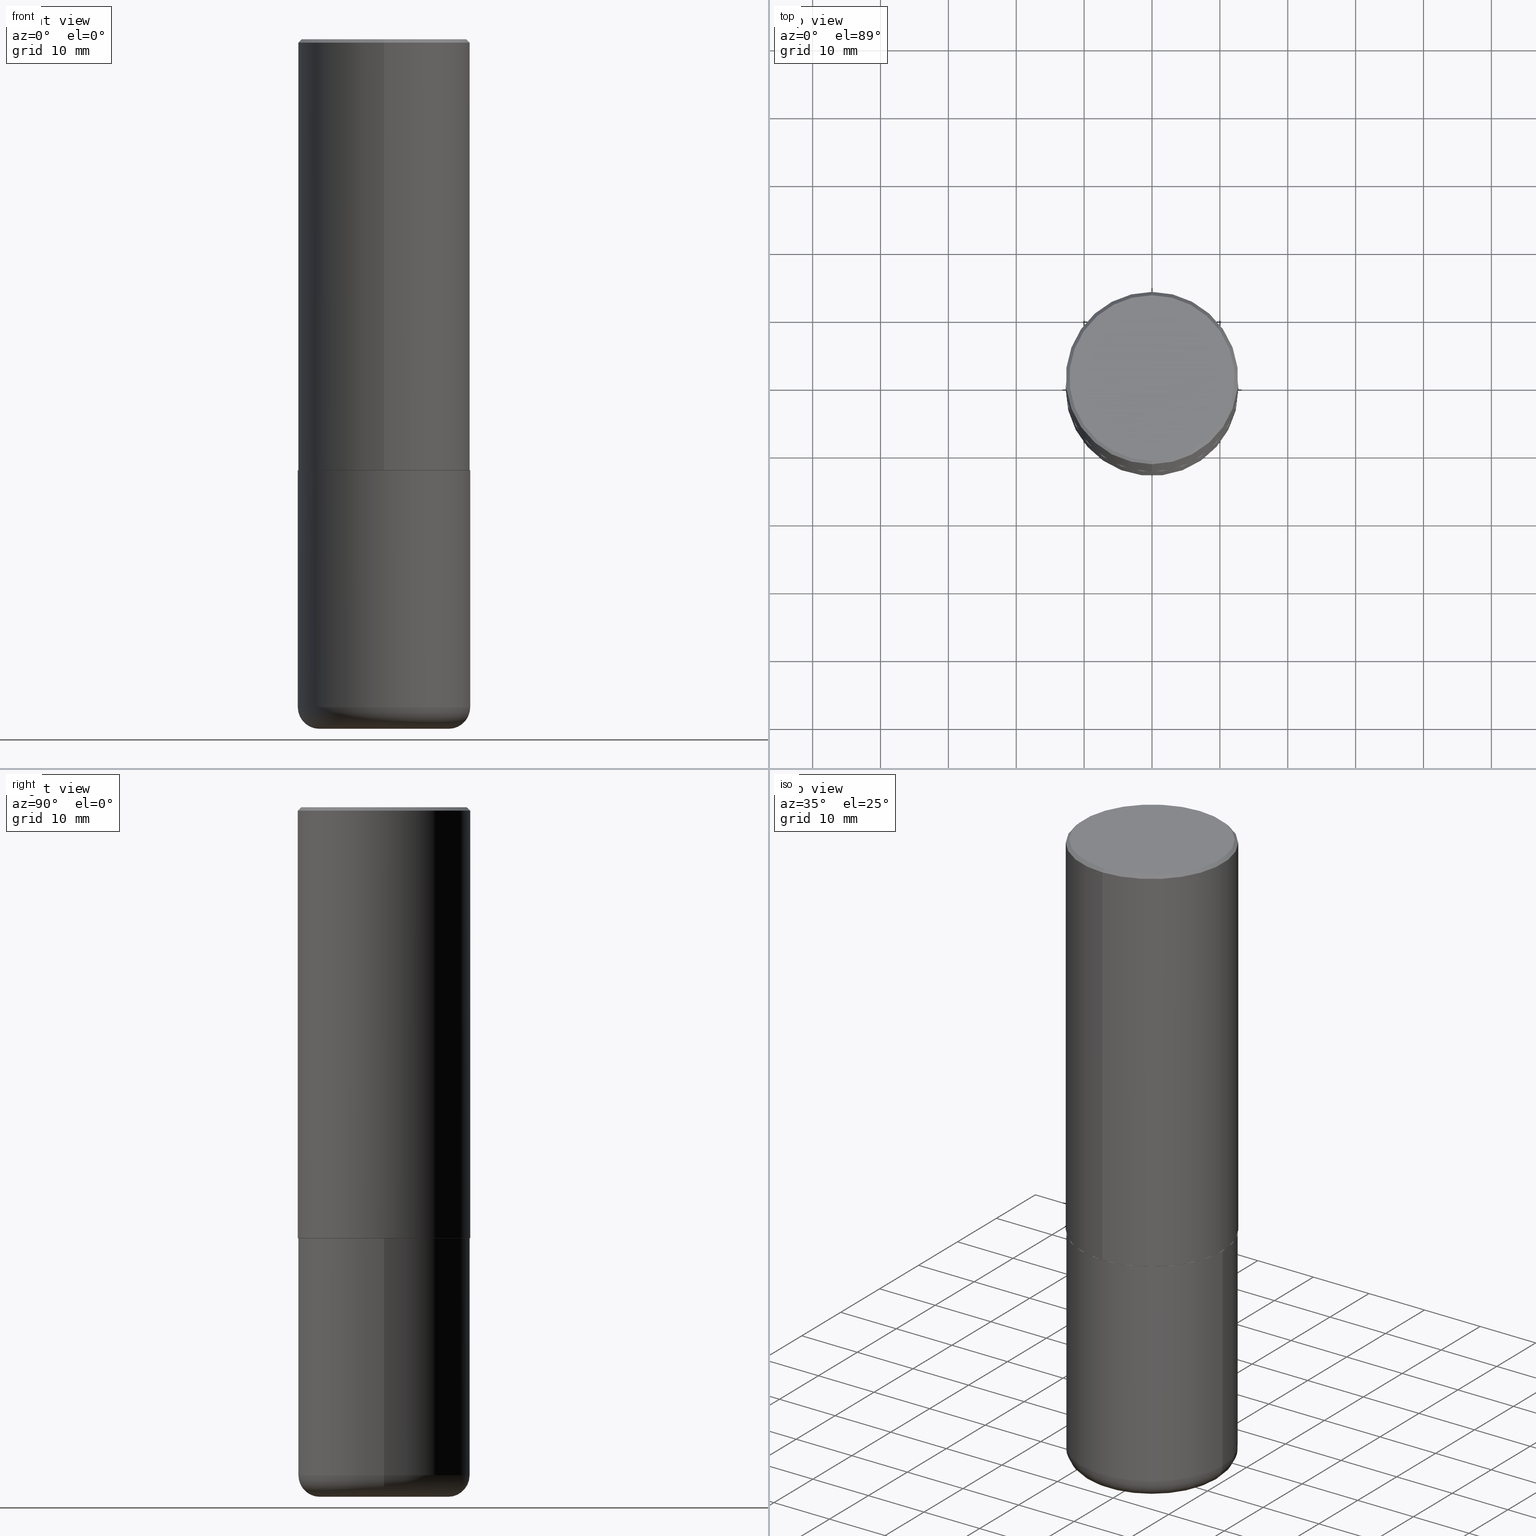
[diagram: canonical four-view strip — front | top / right | iso, engineering-drawing reading convention]
A machine part, canonical four-view strip (front | top / right | iso — engineering-drawing reading convention). The complete STEP part file that produces these views, byte-faithful:
ISO-10303-21;
HEADER;
FILE_DESCRIPTION (( 'STEP AP203' ),
    '1' );
FILE_NAME ('36719.STEP',
    '2024-03-01T17:34:02',
    ( '' ),
    ( '' ),
    'SwSTEP 2.0',
    'SolidWorks 2023',
    '' );
FILE_SCHEMA (( 'CONFIG_CONTROL_DESIGN' ));
ENDSEC;

DATA;
#1 = COORDINATED_UNIVERSAL_TIME_OFFSET ( 5, 0, .BEHIND. ) ;
#2 = CARTESIAN_POINT ( 'NONE',  ( -3.491481338843073796E-15, -0.5000000000000089928, -2.498999999999998778 ) ) ;
#3 = DIRECTION ( 'NONE',  ( 4.937700262164541731E-15, 0.7071067811865442421, -0.7071067811865507924 ) ) ;
#4 = CC_DESIGN_APPROVAL ( #348, ( #27 ) ) ;
#5 = EDGE_CURVE ( 'NONE', #345, #21, #34, .T. ) ;
#6 = DIRECTION ( 'NONE',  ( -2.444544534276841438E-29, 3.492804948822114088E-15, 1.000000000000000000 ) ) ;
#7 = ORIENTED_EDGE ( 'NONE', *, *, #5, .T. ) ;
#8 = MANIFOLD_SOLID_BREP ( 'Body-Move/Copy2[2]', #48 ) ;
#9 = APPROVAL_DATE_TIME ( #81, #348 ) ;
#10 = CIRCLE ( 'NONE', #190, 0.1249999999999999584 ) ;
#11 = AXIS2_PLACEMENT_3D ( 'NONE', #68, #198, #322 ) ;
#12 = SHAPE_DEFINITION_REPRESENTATION ( #80, #377 ) ;
#13 = ADVANCED_FACE ( 'NONE', ( #260 ), #281, .T. ) ;
#14 = CARTESIAN_POINT ( 'NONE',  ( -3.491481338843133750E-15, -0.5000000000000001110, 1.746402474411057438E-15 ) ) ;
#15 = VERTEX_POINT ( 'NONE', #231 ) ;
#16 = ORIENTED_EDGE ( 'NONE', *, *, #370, .T. ) ;
#17 = AXIS2_PLACEMENT_3D ( 'NONE', #88, #344, #54 ) ;
#18 = AXIS2_PLACEMENT_3D ( 'NONE', #126, #120, #125 ) ;
#19 = ORIENTED_EDGE ( 'NONE', *, *, #64, .T. ) ;
#20 = PERSON_AND_ORGANIZATION ( #141, #268 ) ;
#21 = VERTEX_POINT ( 'NONE', #67 ) ;
#22 = CC_DESIGN_PERSON_AND_ORGANIZATION_ASSIGNMENT ( #60, #97, ( #245 ) ) ;
#23 = DIRECTION ( 'NONE',  ( -6.982962677686265922E-15, -1.000000000000000000, 3.492804948822114088E-15 ) ) ;
#24 = APPROVAL_STATUS ( 'not_yet_approved' ) ;
#25 = ORIENTED_EDGE ( 'NONE', *, *, #373, .F. ) ;
#26 = EDGE_LOOP ( 'NONE', ( #248, #400, #46, #314 ) ) ;
#27 = SECURITY_CLASSIFICATION ( '', '', #366 ) ;
#28 = ADVANCED_FACE ( 'NONE', ( #172 ), #289, .T. ) ;
#29 = DIRECTION ( 'NONE',  ( -2.444544534276841438E-29, 3.492804948822114088E-15, 1.000000000000000000 ) ) ;
#30 = CC_DESIGN_PERSON_AND_ORGANIZATION_ASSIGNMENT ( #199, #364, ( #106 ) ) ;
#31 = PERSON_AND_ORGANIZATION_ROLE ( 'classification_officer' ) ;
#32 = ADVANCED_FACE ( 'NONE', ( #43 ), #157, .F. ) ;
#33 = FACE_OUTER_BOUND ( 'NONE', #406, .T. ) ;
#34 = CIRCLE ( 'NONE', #356, 0.4800000000000000933 ) ;
#35 = APPROVAL_PERSON_ORGANIZATION ( #20, #85, #259 ) ;
#36 = PERSON_AND_ORGANIZATION ( #141, #268 ) ;
#37 = DIRECTION ( 'NONE',  ( -2.445468806185136597E-29, 3.491481338843145583E-15, 1.000000000000000000 ) ) ;
#38 = CARTESIAN_POINT ( 'NONE',  ( -0.5000000000000000000, 3.552713678800500929E-15, -2.459467545127452891E-29 ) ) ;
#39 = DIRECTION ( 'NONE',  ( -2.444544534276841438E-29, 3.492804948822114088E-15, 1.000000000000000000 ) ) ;
#40 = DIRECTION ( 'NONE',  ( -6.982962677686265922E-15, -1.000000000000000000, 3.491643216902136408E-15 ) ) ;
#41 = DIRECTION ( 'NONE',  ( -2.444544534276841438E-29, 3.492804948822114088E-15, 1.000000000000000000 ) ) ;
#42 = AXIS2_PLACEMENT_3D ( 'NONE', #187, #306, #397 ) ;
#43 = FACE_OUTER_BOUND ( 'NONE', #272, .T. ) ;
#44 = DIRECTION ( 'NONE',  ( -6.982962677686265922E-15, -1.000000000000000000, 3.284787166730577015E-15 ) ) ;
#45 = CARTESIAN_POINT ( 'NONE',  ( 4.889089068553708695E-31, -6.985609897644266091E-17, -0.02000000000000010797 ) ) ;
#46 = ORIENTED_EDGE ( 'NONE', *, *, #186, .T. ) ;
#47 =( NAMED_UNIT ( * ) PLANE_ANGLE_UNIT ( ) SI_UNIT ( $, .RADIAN. ) );
#48 = CLOSED_SHELL ( 'NONE', ( #13, #359, #104, #52, #151, #398, #32, #290 ) ) ;
#49 = AXIS2_PLACEMENT_3D ( 'NONE', #301, #145, #305 ) ;
#50 = DIRECTION ( 'NONE',  ( -6.982962677686266711E-15, -1.000000000000000000, 3.278217592397114284E-15 ) ) ;
#51 = DIRECTION ( 'NONE',  ( -2.445468806185136597E-29, 3.491481338843145583E-15, 1.000000000000000000 ) ) ;
#52 = ADVANCED_FACE ( 'NONE', ( #84 ), #129, .T. ) ;
#53 = ORIENTED_EDGE ( 'NONE', *, *, #70, .T. ) ;
#54 = DIRECTION ( 'NONE',  ( 6.982962677686265922E-15, 1.000000000000000000, -3.491643216902136408E-15 ) ) ;
#55 = LINE ( 'NONE', #38, #384 ) ;
#56 = DIRECTION ( 'NONE',  ( 1.000000000000000000, -6.982962677686267499E-15, 4.883557194083114022E-29 ) ) ;
#57 = ORIENTED_EDGE ( 'NONE', *, *, #317, .T. ) ;
#58 = CARTESIAN_POINT ( 'NONE',  ( 6.111361335692103595E-29, -8.732012372055285615E-15, -2.500000000000000000 ) ) ;
#59 = EDGE_CURVE ( 'NONE', #308, #15, #335, .T. ) ;
#60 = PERSON_AND_ORGANIZATION ( #141, #268 ) ;
#61 = ORIENTED_EDGE ( 'NONE', *, *, #226, .T. ) ;
#62 = ORIENTED_EDGE ( 'NONE', *, *, #213, .F. ) ;
#63 = ORIENTED_EDGE ( 'NONE', *, *, #5, .F. ) ;
#64 = EDGE_CURVE ( 'NONE', #15, #308, #229, .T. ) ;
#65 = LOCAL_TIME ( 12, 34, 2.000000000000000000, #360 ) ;
#66 = CARTESIAN_POINT ( 'NONE',  ( 0.5000000000000000000, -1.702097152686032086E-14, -3.875000000000000000 ) ) ;
#67 = CARTESIAN_POINT ( 'NONE',  ( -3.361644018908050055E-15, -0.4800000000000000933, 1.544857821031407057E-15 ) ) ;
#68 = CARTESIAN_POINT ( 'NONE',  ( 3.219185358931801043E-45, -4.599624345227544074E-31, -1.316885544032078073E-16 ) ) ;
#69 = DIRECTION ( 'NONE',  ( -6.982962677686265922E-15, -1.000000000000000000, 3.284787166730577015E-15 ) ) ;
#70 = EDGE_CURVE ( 'NONE', #308, #354, #402, .T. ) ;
#71 = AXIS2_PLACEMENT_3D ( 'NONE', #203, #411, #200 ) ;
#72 = LOCAL_TIME ( 12, 34, 2.000000000000000000, #95 ) ;
#73 = VECTOR ( 'NONE', #369, 39.37007874015748143 ) ;
#74 = DIRECTION ( 'NONE',  ( -6.982962677686265922E-15, -1.000000000000000000, 3.491643216902136408E-15 ) ) ;
#75 = DIRECTION ( 'NONE',  ( -2.445468806185136597E-29, 3.491481338843145583E-15, 1.000000000000000000 ) ) ;
#76 = DATE_AND_TIME ( #388, #271 ) ;
#77 = CARTESIAN_POINT ( 'NONE',  ( 9.476191623967404313E-29, -1.352949018801718908E-14, -3.875000000000000000 ) ) ;
#78 = DIRECTION ( 'NONE',  ( 5.024295867789263036E-15, 0.7071067811867189912, 0.7071067811863760433 ) ) ;
#79 = CC_DESIGN_DATE_AND_TIME_ASSIGNMENT ( #76, #330, ( #27 ) ) ;
#80 = PRODUCT_DEFINITION_SHAPE ( 'NONE', 'NONE',  #249 ) ;
#81 = DATE_AND_TIME ( #214, #140 ) ;
#82 = DIRECTION ( 'NONE',  ( -2.445468806185136877E-29, 3.491481338843145188E-15, 1.000000000000000000 ) ) ;
#83 = DIRECTION ( 'NONE',  ( -4.851104656540957964E-15, -0.7071067811865491270, -0.7071067811865459074 ) ) ;
#84 = FACE_OUTER_BOUND ( 'NONE', #347, .T. ) ;
#85 = APPROVAL ( #24, 'UNSPECIFIED' ) ;
#86 = ORIENTED_EDGE ( 'NONE', *, *, #70, .F. ) ;
#87 = AXIS2_PLACEMENT_3D ( 'NONE', #235, #358, #362 ) ;
#88 = CARTESIAN_POINT ( 'NONE',  ( 4.889089068553708695E-31, -6.985609897644266091E-17, -0.02000000000000010797 ) ) ;
#89 = DIRECTION ( 'NONE',  ( -1.000000000000000000, 7.105427357600998703E-15, 0.000000000000000000 ) ) ;
#90 = FACE_OUTER_BOUND ( 'NONE', #155, .T. ) ;
#91 = DIRECTION ( 'NONE',  ( -2.444544534276840877E-29, 3.492804948822114482E-15, 1.000000000000000000 ) ) ;
#92 =( GEOMETRIC_REPRESENTATION_CONTEXT ( 3 ) GLOBAL_UNCERTAINTY_ASSIGNED_CONTEXT ( ( #94 ) ) GLOBAL_UNIT_ASSIGNED_CONTEXT ( ( #382, #47, #162 ) ) REPRESENTATION_CONTEXT ( 'NONE', 'WORKASPACE' ) );
#93 = ORIENTED_EDGE ( 'NONE', *, *, #304, .T. ) ;
#94 = UNCERTAINTY_MEASURE_WITH_UNIT (LENGTH_MEASURE( 1.000000000000000082E-05 ), #382, 'distance_accuracy_value', 'NONE');
#95 = COORDINATED_UNIVERSAL_TIME_OFFSET ( 5, 0, .BEHIND. ) ;
#96 = CARTESIAN_POINT ( 'NONE',  ( 6.111361335692103595E-29, -8.732012372055285615E-15, -2.500000000000000000 ) ) ;
#97 = PERSON_AND_ORGANIZATION_ROLE ( 'design_owner' ) ;
#98 = ORIENTED_EDGE ( 'NONE', *, *, #324, .T. ) ;
#99 = AXIS2_PLACEMENT_3D ( 'NONE', #418, #135, #327 ) ;
#100 = CC_DESIGN_APPROVAL ( #85, ( #249 ) ) ;
#101 = APPROVAL_DATE_TIME ( #284, #110 ) ;
#102 = CARTESIAN_POINT ( 'NONE',  ( 6.113672015462842613E-29, -8.728703347107864943E-15, -2.500000000000000000 ) ) ;
#103 = ORIENTED_EDGE ( 'NONE', *, *, #363, .T. ) ;
#104 = ADVANCED_FACE ( 'NONE', ( #115 ), #210, .T. ) ;
#105 = CARTESIAN_POINT ( 'NONE',  ( 6.111361335692103595E-29, -8.732012372055285615E-15, -2.500000000000000000 ) ) ;
#106 = PRODUCT_DEFINITION_FORMATION_WITH_SPECIFIED_SOURCE ( 'ANY', '', #245, .NOT_KNOWN. ) ;
#107 = EDGE_CURVE ( 'NONE', #251, #401, #55, .T. ) ;
#108 = CARTESIAN_POINT ( 'NONE',  ( 0.000000000000000000, 0.000000000000000000, 0.000000000000000000 ) ) ;
#109 = LINE ( 'NONE', #244, #368 ) ;
#110 = APPROVAL ( #291, 'UNSPECIFIED' ) ;
#111 = AXIS2_PLACEMENT_3D ( 'NONE', #96, #355, #261 ) ;
#112 = AXIS2_PLACEMENT_3D ( 'NONE', #393, #6, #74 ) ;
#113 = EDGE_CURVE ( 'NONE', #21, #354, #109, .T. ) ;
#114 = ORIENTED_EDGE ( 'NONE', *, *, #220, .F. ) ;
#115 = FACE_OUTER_BOUND ( 'NONE', #116, .T. ) ;
#116 = EDGE_LOOP ( 'NONE', ( #25, #150, #61, #237 ) ) ;
#117 = CC_DESIGN_SECURITY_CLASSIFICATION ( #27, ( #106 ) ) ;
#118 = DIRECTION ( 'NONE',  ( -2.444544534276841158E-29, 3.492804948822114482E-15, 1.000000000000000000 ) ) ;
#119 = ORIENTED_EDGE ( 'NONE', *, *, #363, .F. ) ;
#120 = DIRECTION ( 'NONE',  ( 0.000000000000000000, 0.000000000000000000, 1.000000000000000000 ) ) ;
#121 = ORIENTED_EDGE ( 'NONE', *, *, #107, .T. ) ;
#122 = EDGE_LOOP ( 'NONE', ( #275, #277, #103, #413 ) ) ;
#123 = VECTOR ( 'NONE', #3, 39.37007874015748143 ) ;
#124 = ORIENTED_EDGE ( 'NONE', *, *, #113, .F. ) ;
#125 = DIRECTION ( 'NONE',  ( 1.000000000000000000, 0.000000000000000000, 0.000000000000000000 ) ) ;
#126 = CARTESIAN_POINT ( 'NONE',  ( 0.000000000000000000, 0.000000000000000000, 0.000000000000000000 ) ) ;
#127 = DIRECTION ( 'NONE',  ( -6.982962677686266711E-15, -1.000000000000000000, 3.491481338843145583E-15 ) ) ;
#128 = DIRECTION ( 'NONE',  ( 6.982962677686265922E-15, 1.000000000000000000, -3.492804948822114482E-15 ) ) ;
#129 = CONICAL_SURFACE ( 'NONE', #267, 0.5000000000000000000, 0.7853981633974471688 ) ;
#130 =( LENGTH_UNIT ( ) NAMED_UNIT ( * ) SI_UNIT ( $, .METRE. ) );
#131 = CIRCLE ( 'NONE', #410, 0.4989999999999999991 ) ;
#132 = ADVANCED_FACE ( 'NONE', ( #302 ), #205, .T. ) ;
#133 = CARTESIAN_POINT ( 'NONE',  ( 6.111361335692103595E-29, -8.732012372055285615E-15, -2.500000000000000000 ) ) ;
#134 = COORDINATED_UNIVERSAL_TIME_OFFSET ( 5, 0, .BEHIND. ) ;
#135 = DIRECTION ( 'NONE',  ( -2.445468806185136597E-29, 3.491481338843145583E-15, 1.000000000000000000 ) ) ;
#136 = PERSON_AND_ORGANIZATION ( #141, #268 ) ;
#137 = ADVANCED_FACE ( 'NONE', ( #293 ), #148, .T. ) ;
#138 = FACE_OUTER_BOUND ( 'NONE', #218, .T. ) ;
#139 = CARTESIAN_POINT ( 'NONE',  ( 3.552713678800501718E-15, 0.5000000000000001110, -1.746402474411057438E-15 ) ) ;
#140 = LOCAL_TIME ( 12, 34, 2.000000000000000000, #134 ) ;
#141 = PERSON ( 'UNSPECIFIED', 'UNSPECIFIED', 'UNSPECIFIED', ('UNSPECIFIED'), ('UNSPECIFIED'), ('UNSPECIFIED') ) ;
#142 = LINE ( 'NONE', #270, #73 ) ;
#143 = CARTESIAN_POINT ( 'NONE',  ( 0.3749999999999999445, -1.658453635950493392E-14, -4.000000000000000000 ) ) ;
#144 = CARTESIAN_POINT ( 'NONE',  ( -0.5000000000000000000, -7.576383088762025295E-15, -2.500000000000000000 ) ) ;
#145 = DIRECTION ( 'NONE',  ( -2.445468806185136597E-29, 3.491481338843145583E-15, 1.000000000000000000 ) ) ;
#146 = EDGE_CURVE ( 'NONE', #315, #251, #10, .T. ) ;
#147 = VECTOR ( 'NONE', #212, 39.37007874015748143 ) ;
#148 = CYLINDRICAL_SURFACE ( 'NONE', #174, 0.5000000000000000000 ) ;
#149 = ORIENTED_EDGE ( 'NONE', *, *, #370, .F. ) ;
#150 = ORIENTED_EDGE ( 'NONE', *, *, #113, .T. ) ;
#151 = ADVANCED_FACE ( 'NONE', ( #273 ), #311, .T. ) ;
#152 = ORIENTED_EDGE ( 'NONE', *, *, #206, .T. ) ;
#153 = AXIS2_PLACEMENT_3D ( 'NONE', #367, #127, #262 ) ;
#154 = DIRECTION ( 'NONE',  ( -2.444544534276841438E-29, 3.492804948822114088E-15, 1.000000000000000000 ) ) ;
#155 = EDGE_LOOP ( 'NONE', ( #396, #405, #158, #279 ) ) ;
#156 = ORIENTED_EDGE ( 'NONE', *, *, #159, .T. ) ;
#157 = PLANE ( 'NONE',  #316 ) ;
#158 = ORIENTED_EDGE ( 'NONE', *, *, #213, .T. ) ;
#159 = EDGE_CURVE ( 'NONE', #166, #401, #257, .T. ) ;
#160 = MANIFOLD_SOLID_BREP ( 'Body-Move/Copy2[1]', #250 ) ;
#161 = VERTEX_POINT ( 'NONE', #383 ) ;
#162 =( NAMED_UNIT ( * ) SI_UNIT ( $, .STERADIAN. ) SOLID_ANGLE_UNIT ( ) );
#163 = EDGE_CURVE ( 'NONE', #315, #188, #394, .T. ) ;
#164 = LOCAL_TIME ( 12, 34, 2.000000000000000000, #389 ) ;
#165 = VERTEX_POINT ( 'NONE', #66 ) ;
#166 = VERTEX_POINT ( 'NONE', #197 ) ;
#167 = FACE_OUTER_BOUND ( 'NONE', #346, .T. ) ;
#168 = DIRECTION ( 'NONE',  ( -2.445468806185136597E-29, 3.491481338843145583E-15, 1.000000000000000000 ) ) ;
#169 = DATE_AND_TIME ( #177, #164 ) ;
#170 = DIRECTION ( 'NONE',  ( 1.000000000000000000, -6.982962677686269077E-15, 0.000000000000000000 ) ) ;
#171 = PERSON_AND_ORGANIZATION ( #141, #268 ) ;
#172 = FACE_OUTER_BOUND ( 'NONE', #350, .T. ) ;
#173 = PERSON_AND_ORGANIZATION ( #141, #268 ) ;
#174 = AXIS2_PLACEMENT_3D ( 'NONE', #341, #51, #407 ) ;
#175 = ADVANCED_FACE ( 'NONE', ( #194 ), #319, .T. ) ;
#176 = CIRCLE ( 'NONE', #49, 0.3749999999999999445 ) ;
#177 = CALENDAR_DATE ( 2024, 1, 3 ) ;
#178 = CARTESIAN_POINT ( 'NONE',  ( -3.484498376165385415E-15, -0.4990000000000087144, -2.499999999999998668 ) ) ;
#179 = CARTESIAN_POINT ( 'NONE',  ( -0.3749999999999999445, -1.063908330274444739E-14, -4.000000000000000000 ) ) ;
#180 = PLANE ( 'NONE',  #372 ) ;
#181 = PRODUCT_RELATED_PRODUCT_CATEGORY ( 'detail', '', ( #245 ) ) ;
#182 = APPLICATION_CONTEXT ( 'configuration controlled 3d designs of mechanical parts and assemblies' ) ;
#183 = LINE ( 'NONE', #298, #207 ) ;
#184 = DESIGN_CONTEXT ( 'detailed design', #182, 'design' ) ;
#185 = DIRECTION ( 'NONE',  ( -2.444544534276841438E-29, 3.492804948822114088E-15, 1.000000000000000000 ) ) ;
#186 = EDGE_CURVE ( 'NONE', #165, #166, #142, .T. ) ;
#187 = CARTESIAN_POINT ( 'NONE',  ( 6.108916791157827585E-29, -8.728519567106463881E-15, -2.499000000000000110 ) ) ;
#188 = VERTEX_POINT ( 'NONE', #143 ) ;
#189 = DIRECTION ( 'NONE',  ( 7.105427357601001859E-15, 1.000000000000000000, -3.491481338843145583E-15 ) ) ;
#190 = AXIS2_PLACEMENT_3D ( 'NONE', #399, #189, #89 ) ;
#191 = AXIS2_PLACEMENT_3D ( 'NONE', #265, #334, #337 ) ;
#192 = APPLICATION_PROTOCOL_DEFINITION ( 'international standard', 'config_control_design', 1994, #182 ) ;
#193 = ORIENTED_EDGE ( 'NONE', *, *, #159, .F. ) ;
#194 = FACE_OUTER_BOUND ( 'NONE', #254, .T. ) ;
#195 = AXIS2_PLACEMENT_3D ( 'NONE', #108, #29, #242 ) ;
#196 = DIRECTION ( 'NONE',  ( -2.444544534276841158E-29, 3.492804948822114482E-15, 1.000000000000000000 ) ) ;
#197 = CARTESIAN_POINT ( 'NONE',  ( 0.5000000000000000000, -1.222018468595099830E-14, -2.500000000000000000 ) ) ;
#198 = DIRECTION ( 'NONE',  ( -2.444544534276841438E-29, 3.492804948822114088E-15, 1.000000000000000000 ) ) ;
#199 = PERSON_AND_ORGANIZATION ( #141, #268 ) ;
#200 = DIRECTION ( 'NONE',  ( 1.000000000000000000, -6.982962677686269077E-15, 0.000000000000000000 ) ) ;
#201 = DIRECTION ( 'NONE',  ( 1.000000000000000000, -6.982962677686266711E-15, 0.000000000000000000 ) ) ;
#202 = DIRECTION ( 'NONE',  ( -6.982962677686265922E-15, -1.000000000000000000, 3.492804948822113694E-15 ) ) ;
#203 = CARTESIAN_POINT ( 'NONE',  ( 9.781875224740546387E-29, -1.396592535537258233E-14, -4.000000000000000000 ) ) ;
#204 = CARTESIAN_POINT ( 'NONE',  ( 3.219185358931801043E-45, -4.599624345227544074E-31, -1.316885544032078073E-16 ) ) ;
#205 = TOROIDAL_SURFACE ( 'NONE', #325, 0.3749999999999999445, 0.1249999999999999584 ) ;
#206 = EDGE_CURVE ( 'NONE', #256, #354, #230, .T. ) ;
#207 = VECTOR ( 'NONE', #78, 39.37007874015748143 ) ;
#208 = CARTESIAN_POINT ( 'NONE',  ( 3.491481338843133355E-15, 0.4999999999999999445, -0.02000000000000185310 ) ) ;
#209 = CARTESIAN_POINT ( 'NONE',  ( 9.476191623967404313E-29, -1.352949018801718908E-14, -3.875000000000000000 ) ) ;
#210 = CONICAL_SURFACE ( 'NONE', #17, 0.5000000000000000000, 0.7853981633974471688 ) ;
#211 = AXIS2_PLACEMENT_3D ( 'NONE', #243, #41, #44 ) ;
#212 = DIRECTION ( 'NONE',  ( -4.937700262165728178E-15, -0.7071067811867141062, 0.7071067811863809283 ) ) ;
#213 = EDGE_CURVE ( 'NONE', #161, #308, #246, .T. ) ;
#214 = CALENDAR_DATE ( 2024, 1, 3 ) ;
#215 = CC_DESIGN_PERSON_AND_ORGANIZATION_ASSIGNMENT ( #171, #409, ( #249 ) ) ;
#216 = DIRECTION ( 'NONE',  ( 2.444544534276841438E-29, -3.492804948822114088E-15, -1.000000000000000000 ) ) ;
#217 = DIRECTION ( 'NONE',  ( -2.445468806185136597E-29, 3.491481338843145583E-15, 1.000000000000000000 ) ) ;
#218 = EDGE_LOOP ( 'NONE', ( #156, #93 ) ) ;
#219 = CC_DESIGN_APPROVAL ( #110, ( #106 ) ) ;
#220 = EDGE_CURVE ( 'NONE', #161, #285, #131, .T. ) ;
#221 = ORIENTED_EDGE ( 'NONE', *, *, #59, .F. ) ;
#222 = MECHANICAL_CONTEXT ( 'NONE', #339, 'mechanical' ) ;
#223 = DIRECTION ( 'NONE',  ( 2.438088387897960049E-29, -3.491481338843145188E-15, -1.000000000000000000 ) ) ;
#224 = CIRCLE ( 'NONE', #258, 0.4989999999999999991 ) ;
#225 = CARTESIAN_POINT ( 'NONE',  ( 6.108916791157827585E-29, -8.728519567106463881E-15, -2.499000000000000110 ) ) ;
#226 = EDGE_CURVE ( 'NONE', #354, #256, #336, .T. ) ;
#227 = CARTESIAN_POINT ( 'NONE',  ( 6.113672015462842613E-29, -8.728703347107864943E-15, -2.500000000000000000 ) ) ;
#228 = CALENDAR_DATE ( 2024, 1, 3 ) ;
#229 = CIRCLE ( 'NONE', #42, 0.5000000000000002220 ) ;
#230 = CIRCLE ( 'NONE', #112, 0.5000000000000000000 ) ;
#231 = CARTESIAN_POINT ( 'NONE',  ( 3.552713678800533273E-15, 0.4999999999999916178, -2.499000000000001886 ) ) ;
#232 = DIMENSIONAL_EXPONENTS ( 1.000000000000000000, 0.000000000000000000, 0.000000000000000000, 0.000000000000000000, 0.000000000000000000, 0.000000000000000000, 0.000000000000000000 ) ;
#233 = LINE ( 'NONE', #139, #390 ) ;
#234 = ORIENTED_EDGE ( 'NONE', *, *, #296, .F. ) ;
#235 = CARTESIAN_POINT ( 'NONE',  ( 9.476191623967404313E-29, -1.352949018801718908E-14, -3.875000000000000000 ) ) ;
#236 = EDGE_CURVE ( 'NONE', #285, #15, #183, .T. ) ;
#237 = ORIENTED_EDGE ( 'NONE', *, *, #317, .F. ) ;
#238 = APPROVAL_ROLE ( '' ) ;
#239 = CC_DESIGN_DATE_AND_TIME_ASSIGNMENT ( #169, #328, ( #249 ) ) ;
#240 = AXIS2_PLACEMENT_3D ( 'NONE', #209, #37, #201 ) ;
#241 = CALENDAR_DATE ( 2024, 1, 3 ) ;
#242 = DIRECTION ( 'NONE',  ( -6.982962677686265922E-15, -1.000000000000000000, 3.492804948822114088E-15 ) ) ;
#243 = CARTESIAN_POINT ( 'NONE',  ( 6.111361335692103595E-29, -8.732012372055285615E-15, -2.500000000000000000 ) ) ;
#244 = CARTESIAN_POINT ( 'NONE',  ( -3.430248998885764992E-15, -0.5000000000000001110, -0.01999999999999835937 ) ) ;
#245 = PRODUCT ( '36719', '36719', '', ( #222 ) ) ;
#246 = LINE ( 'NONE', #178, #147 ) ;
#247 = AXIS2_PLACEMENT_3D ( 'NONE', #102, #168, #170 ) ;
#248 = ORIENTED_EDGE ( 'NONE', *, *, #107, .F. ) ;
#249 = PRODUCT_DEFINITION ( 'UNKNOWN', '', #106, #184 ) ;
#250 = CLOSED_SHELL ( 'NONE', ( #28, #380, #278, #137, #132, #175 ) ) ;
#251 = VERTEX_POINT ( 'NONE', #333 ) ;
#252 = AXIS2_PLACEMENT_3D ( 'NONE', #326, #321, #386 ) ;
#253 = DIRECTION ( 'NONE',  ( 6.982962677686265922E-15, 1.000000000000000000, -3.491643216902136408E-15 ) ) ;
#254 = EDGE_LOOP ( 'NONE', ( #234, #310 ) ) ;
#255 = ORIENTED_EDGE ( 'NONE', *, *, #373, .T. ) ;
#256 = VERTEX_POINT ( 'NONE', #208 ) ;
#257 = CIRCLE ( 'NONE', #247, 0.5000000000000000000 ) ;
#258 = AXIS2_PLACEMENT_3D ( 'NONE', #133, #264, #69 ) ;
#259 = APPROVAL_ROLE ( '' ) ;
#260 = FACE_OUTER_BOUND ( 'NONE', #387, .T. ) ;
#261 = DIRECTION ( 'NONE',  ( -6.982962677686265922E-15, -1.000000000000000000, 3.284787166730577015E-15 ) ) ;
#262 = DIRECTION ( 'NONE',  ( 1.000000000000000000, -6.982962677686265133E-15, 0.000000000000000000 ) ) ;
#263 = CIRCLE ( 'NONE', #153, 0.1249999999999999584 ) ;
#264 = DIRECTION ( 'NONE',  ( -2.444544534276841438E-29, 3.492804948822114088E-15, 1.000000000000000000 ) ) ;
#265 = CARTESIAN_POINT ( 'NONE',  ( 9.476191623967404313E-29, -1.352949018801718908E-14, -3.875000000000000000 ) ) ;
#266 = PLANE ( 'NONE',  #351 ) ;
#267 = AXIS2_PLACEMENT_3D ( 'NONE', #309, #216, #253 ) ;
#268 = ORGANIZATION ( 'UNSPECIFIED', 'UNSPECIFIED', '' ) ;
#269 = CARTESIAN_POINT ( 'NONE',  ( -3.430248998885764992E-15, -0.5000000000000001110, -0.01999999999999835937 ) ) ;
#270 = CARTESIAN_POINT ( 'NONE',  ( 0.5000000000000000000, -3.491481338843133355E-15, 2.438088387897967896E-29 ) ) ;
#271 = LOCAL_TIME ( 12, 34, 2.000000000000000000, #1 ) ;
#272 = EDGE_LOOP ( 'NONE', ( #114, #313 ) ) ;
#273 = FACE_OUTER_BOUND ( 'NONE', #371, .T. ) ;
#274 = ORIENTED_EDGE ( 'NONE', *, *, #226, .F. ) ;
#275 = ORIENTED_EDGE ( 'NONE', *, *, #146, .F. ) ;
#276 = EDGE_CURVE ( 'NONE', #251, #165, #357, .T. ) ;
#277 = ORIENTED_EDGE ( 'NONE', *, *, #163, .T. ) ;
#278 = ADVANCED_FACE ( 'NONE', ( #138 ), #266, .F. ) ;
#279 = ORIENTED_EDGE ( 'NONE', *, *, #64, .F. ) ;
#280 = DIRECTION ( 'NONE',  ( -6.982962677686265922E-15, -1.000000000000000000, 3.492804948822114482E-15 ) ) ;
#281 = CONICAL_SURFACE ( 'NONE', #111, 0.4989999999999999991, 0.7853981633976873100 ) ;
#282 = AXIS2_PLACEMENT_3D ( 'NONE', #227, #75, #416 ) ;
#283 = ORIENTED_EDGE ( 'NONE', *, *, #220, .T. ) ;
#284 = DATE_AND_TIME ( #241, #65 ) ;
#285 = VERTEX_POINT ( 'NONE', #381 ) ;
#286 = LINE ( 'NONE', #294, #123 ) ;
#287 = AXIS2_PLACEMENT_3D ( 'NONE', #403, #154, #23 ) ;
#288 = EDGE_LOOP ( 'NONE', ( #343, #98, #274, #86 ) ) ;
#289 = CYLINDRICAL_SURFACE ( 'NONE', #99, 0.5000000000000000000 ) ;
#290 = ADVANCED_FACE ( 'NONE', ( #167 ), #180, .F. ) ;
#291 = APPROVAL_STATUS ( 'not_yet_approved' ) ;
#292 = PERSON_AND_ORGANIZATION_ROLE ( 'design_supplier' ) ;
#293 = FACE_OUTER_BOUND ( 'NONE', #26, .T. ) ;
#294 = CARTESIAN_POINT ( 'NONE',  ( 3.491481338843133355E-15, 0.4999999999999999445, -0.02000000000000185310 ) ) ;
#295 = APPROVAL_STATUS ( 'not_yet_approved' ) ;
#296 = EDGE_CURVE ( 'NONE', #188, #315, #176, .T. ) ;
#297 = CIRCLE ( 'NONE', #282, 0.5000000000000000000 ) ;
#298 = CARTESIAN_POINT ( 'NONE',  ( 3.545608251442960663E-15, 0.4989999999999912283, -2.500000000000001776 ) ) ;
#299 = DIRECTION ( 'NONE',  ( 2.444544534276840877E-29, -3.492804948822114482E-15, -1.000000000000000000 ) ) ;
#300 = CC_DESIGN_PERSON_AND_ORGANIZATION_ASSIGNMENT ( #323, #31, ( #27 ) ) ;
#301 = CARTESIAN_POINT ( 'NONE',  ( 9.781875224740546387E-29, -1.396592535537258233E-14, -4.000000000000000000 ) ) ;
#302 = FACE_OUTER_BOUND ( 'NONE', #122, .T. ) ;
#303 = CONICAL_SURFACE ( 'NONE', #211, 0.4989999999999999991, 0.7853981633976873100 ) ;
#304 = EDGE_CURVE ( 'NONE', #401, #166, #297, .T. ) ;
#305 = DIRECTION ( 'NONE',  ( 1.000000000000000000, -6.982962677686269077E-15, 0.000000000000000000 ) ) ;
#306 = DIRECTION ( 'NONE',  ( -2.444544534276841438E-29, 3.492804948822114088E-15, 1.000000000000000000 ) ) ;
#307 = ORIENTED_EDGE ( 'NONE', *, *, #146, .T. ) ;
#308 = VERTEX_POINT ( 'NONE', #2 ) ;
#309 = CARTESIAN_POINT ( 'NONE',  ( 4.889089068553708695E-31, -6.985609897644266091E-17, -0.02000000000000010797 ) ) ;
#310 = ORIENTED_EDGE ( 'NONE', *, *, #163, .F. ) ;
#311 = CYLINDRICAL_SURFACE ( 'NONE', #287, 0.5000000000000001110 ) ;
#312 = ORIENTED_EDGE ( 'NONE', *, *, #186, .F. ) ;
#313 = ORIENTED_EDGE ( 'NONE', *, *, #376, .F. ) ;
#314 = ORIENTED_EDGE ( 'NONE', *, *, #304, .F. ) ;
#315 = VERTEX_POINT ( 'NONE', #179 ) ;
#316 = AXIS2_PLACEMENT_3D ( 'NONE', #58, #91, #280 ) ;
#317 = EDGE_CURVE ( 'NONE', #345, #256, #286, .T. ) ;
#318 = APPROVAL_PERSON_ORGANIZATION ( #173, #348, #417 ) ;
#319 = PLANE ( 'NONE',  #252 ) ;
#320 = CYLINDRICAL_SURFACE ( 'NONE', #195, 0.5000000000000001110 ) ;
#321 = DIRECTION ( 'NONE',  ( 2.438088387897960049E-29, -3.491481338843145188E-15, -1.000000000000000000 ) ) ;
#322 = DIRECTION ( 'NONE',  ( -6.982962677686265922E-15, -1.000000000000000000, 3.492804948822113694E-15 ) ) ;
#323 = PERSON_AND_ORGANIZATION ( #141, #268 ) ;
#324 = EDGE_CURVE ( 'NONE', #15, #256, #233, .T. ) ;
#325 = AXIS2_PLACEMENT_3D ( 'NONE', #77, #217, #56 ) ;
#326 = CARTESIAN_POINT ( 'NONE',  ( 9.781875224740546387E-29, -1.396592535537258233E-14, -4.000000000000000000 ) ) ;
#327 = DIRECTION ( 'NONE',  ( 1.000000000000000000, -6.982962677686266711E-15, 4.876176775795935793E-29 ) ) ;
#328 = DATE_TIME_ROLE ( 'creation_date' ) ;
#329 = DATE_AND_TIME ( #228, #72 ) ;
#330 = DATE_TIME_ROLE ( 'classification_date' ) ;
#331 = CARTESIAN_POINT ( 'NONE',  ( 4.206032757375876713E-29, -1.146055134077212698E-14, -2.500000000000000000 ) ) ;
#332 = LENGTH_MEASURE_WITH_UNIT ( LENGTH_MEASURE( 0.02539999999999999897 ), #130 );
#333 = CARTESIAN_POINT ( 'NONE',  ( -0.5000000000000000000, -9.976776509216686576E-15, -3.875000000000000000 ) ) ;
#334 = DIRECTION ( 'NONE',  ( -2.445468806185136597E-29, 3.491481338843145583E-15, 1.000000000000000000 ) ) ;
#335 = CIRCLE ( 'NONE', #404, 0.5000000000000002220 ) ;
#336 = CIRCLE ( 'NONE', #379, 0.5000000000000000000 ) ;
#337 = DIRECTION ( 'NONE',  ( 1.000000000000000000, -6.982962677686267499E-15, 4.883557194083114022E-29 ) ) ;
#338 = DIRECTION ( 'NONE',  ( -6.982962677686265922E-15, -1.000000000000000000, 3.284787166730577015E-15 ) ) ;
#339 = APPLICATION_CONTEXT ( 'configuration controlled 3d designs of mechanical parts and assemblies' ) ;
#340 = DIRECTION ( 'NONE',  ( -2.444544534276841438E-29, 3.492804948822114088E-15, 1.000000000000000000 ) ) ;
#341 = CARTESIAN_POINT ( 'NONE',  ( 0.000000000000000000, 0.000000000000000000, 0.000000000000000000 ) ) ;
#342 = APPROVAL_PERSON_ORGANIZATION ( #136, #110, #238 ) ;
#343 = ORIENTED_EDGE ( 'NONE', *, *, #59, .T. ) ;
#344 = DIRECTION ( 'NONE',  ( 2.444544534276841438E-29, -3.492804948822114088E-15, -1.000000000000000000 ) ) ;
#345 = VERTEX_POINT ( 'NONE', #391 ) ;
#346 = EDGE_LOOP ( 'NONE', ( #7, #255 ) ) ;
#347 = EDGE_LOOP ( 'NONE', ( #124, #63, #57, #152 ) ) ;
#348 = APPROVAL ( #295, 'UNSPECIFIED' ) ;
#349 = VECTOR ( 'NONE', #118, 39.37007874015748143 ) ;
#350 = EDGE_LOOP ( 'NONE', ( #16, #121, #193, #312 ) ) ;
#351 = AXIS2_PLACEMENT_3D ( 'NONE', #331, #223, #352 ) ;
#352 = DIRECTION ( 'NONE',  ( -1.000000000000000000, 6.982962677686265922E-15, -4.876176775795935793E-29 ) ) ;
#353 = APPROVAL_DATE_TIME ( #329, #85 ) ;
#354 = VERTEX_POINT ( 'NONE', #269 ) ;
#355 = DIRECTION ( 'NONE',  ( -2.444544534276841438E-29, 3.492804948822114088E-15, 1.000000000000000000 ) ) ;
#356 = AXIS2_PLACEMENT_3D ( 'NONE', #204, #361, #202 ) ;
#357 = CIRCLE ( 'NONE', #240, 0.5000000000000000000 ) ;
#358 = DIRECTION ( 'NONE',  ( -2.445468806185136597E-29, 3.491481338843145583E-15, 1.000000000000000000 ) ) ;
#359 = ADVANCED_FACE ( 'NONE', ( #414 ), #320, .T. ) ;
#360 = COORDINATED_UNIVERSAL_TIME_OFFSET ( 5, 0, .BEHIND. ) ;
#361 = DIRECTION ( 'NONE',  ( -2.444544534276841438E-29, 3.492804948822114088E-15, 1.000000000000000000 ) ) ;
#362 = DIRECTION ( 'NONE',  ( 1.000000000000000000, -6.982962677686266711E-15, 0.000000000000000000 ) ) ;
#363 = EDGE_CURVE ( 'NONE', #188, #165, #263, .T. ) ;
#364 = PERSON_AND_ORGANIZATION_ROLE ( 'creator' ) ;
#365 = TOROIDAL_SURFACE ( 'NONE', #191, 0.3749999999999999445, 0.1249999999999999584 ) ;
#366 = SECURITY_CLASSIFICATION_LEVEL ( 'unclassified' ) ;
#367 = CARTESIAN_POINT ( 'NONE',  ( 0.3749999999999999445, -1.614810119214953752E-14, -3.875000000000000000 ) ) ;
#368 = VECTOR ( 'NONE', #83, 39.37007874015748143 ) ;
#369 = DIRECTION ( 'NONE',  ( -2.445468806185136877E-29, 3.491481338843145188E-15, 1.000000000000000000 ) ) ;
#370 = EDGE_CURVE ( 'NONE', #165, #251, #395, .T. ) ;
#371 = EDGE_LOOP ( 'NONE', ( #412, #19, #53, #375 ) ) ;
#372 = AXIS2_PLACEMENT_3D ( 'NONE', #392, #299, #128 ) ;
#373 = EDGE_CURVE ( 'NONE', #21, #345, #385, .T. ) ;
#374 = APPLICATION_PROTOCOL_DEFINITION ( 'international standard', 'config_control_design', 1994, #339 ) ;
#375 = ORIENTED_EDGE ( 'NONE', *, *, #206, .F. ) ;
#376 = EDGE_CURVE ( 'NONE', #285, #161, #224, .T. ) ;
#377 = ADVANCED_BREP_SHAPE_REPRESENTATION ( '36719', ( #160, #8, #18 ), #92 ) ;
#378 = ORIENTED_EDGE ( 'NONE', *, *, #236, .T. ) ;
#379 = AXIS2_PLACEMENT_3D ( 'NONE', #45, #185, #40 ) ;
#380 = ADVANCED_FACE ( 'NONE', ( #33 ), #365, .T. ) ;
#381 = CARTESIAN_POINT ( 'NONE',  ( 3.549160965121762351E-15, 0.4989999999999912283, -2.500000000000001776 ) ) ;
#382 =( CONVERSION_BASED_UNIT ( 'INCH', #332 ) LENGTH_UNIT ( ) NAMED_UNIT ( #232 ) );
#383 = CARTESIAN_POINT ( 'NONE',  ( -3.484498376165385415E-15, -0.4990000000000087144, -2.499999999999998668 ) ) ;
#384 = VECTOR ( 'NONE', #82, 39.37007874015748143 ) ;
#385 = CIRCLE ( 'NONE', #11, 0.4800000000000000933 ) ;
#386 = DIRECTION ( 'NONE',  ( -1.000000000000000000, 6.982962677686265922E-15, -4.876176775795935793E-29 ) ) ;
#387 = EDGE_LOOP ( 'NONE', ( #283, #378, #221, #62 ) ) ;
#388 = CALENDAR_DATE ( 2024, 1, 3 ) ;
#389 = COORDINATED_UNIVERSAL_TIME_OFFSET ( 5, 0, .BEHIND. ) ;
#390 = VECTOR ( 'NONE', #196, 39.37007874015748143 ) ;
#391 = CARTESIAN_POINT ( 'NONE',  ( 3.421651712066271240E-15, 0.4800000000000000933, -1.808234929837822918E-15 ) ) ;
#392 = CARTESIAN_POINT ( 'NONE',  ( 3.351822085289408337E-15, 0.4800000000000000933, -1.742390652636218903E-15 ) ) ;
#393 = CARTESIAN_POINT ( 'NONE',  ( 4.889089068553708695E-31, -6.985609897644266091E-17, -0.02000000000000010797 ) ) ;
#394 = CIRCLE ( 'NONE', #71, 0.3749999999999999445 ) ;
#395 = CIRCLE ( 'NONE', #87, 0.5000000000000000000 ) ;
#396 = ORIENTED_EDGE ( 'NONE', *, *, #236, .F. ) ;
#397 = DIRECTION ( 'NONE',  ( -6.982962677686266711E-15, -1.000000000000000000, 3.278217592397114284E-15 ) ) ;
#398 = ADVANCED_FACE ( 'NONE', ( #90 ), #303, .T. ) ;
#399 = CARTESIAN_POINT ( 'NONE',  ( -0.3749999999999999445, -1.086495492891681339E-14, -3.875000000000000000 ) ) ;
#400 = ORIENTED_EDGE ( 'NONE', *, *, #276, .T. ) ;
#401 = VERTEX_POINT ( 'NONE', #144 ) ;
#402 = LINE ( 'NONE', #14, #349 ) ;
#403 = CARTESIAN_POINT ( 'NONE',  ( 0.000000000000000000, 0.000000000000000000, 0.000000000000000000 ) ) ;
#404 = AXIS2_PLACEMENT_3D ( 'NONE', #225, #340, #50 ) ;
#405 = ORIENTED_EDGE ( 'NONE', *, *, #376, .T. ) ;
#406 = EDGE_LOOP ( 'NONE', ( #408, #307, #149, #119 ) ) ;
#407 = DIRECTION ( 'NONE',  ( 1.000000000000000000, -6.982962677686266711E-15, 4.876176775795935793E-29 ) ) ;
#408 = ORIENTED_EDGE ( 'NONE', *, *, #296, .T. ) ;
#409 = PERSON_AND_ORGANIZATION_ROLE ( 'creator' ) ;
#410 = AXIS2_PLACEMENT_3D ( 'NONE', #105, #39, #338 ) ;
#411 = DIRECTION ( 'NONE',  ( -2.445468806185136597E-29, 3.491481338843145583E-15, 1.000000000000000000 ) ) ;
#412 = ORIENTED_EDGE ( 'NONE', *, *, #324, .F. ) ;
#413 = ORIENTED_EDGE ( 'NONE', *, *, #276, .F. ) ;
#414 = FACE_OUTER_BOUND ( 'NONE', #288, .T. ) ;
#415 = CC_DESIGN_PERSON_AND_ORGANIZATION_ASSIGNMENT ( #36, #292, ( #106 ) ) ;
#416 = DIRECTION ( 'NONE',  ( 1.000000000000000000, -6.982962677686269077E-15, 0.000000000000000000 ) ) ;
#417 = APPROVAL_ROLE ( '' ) ;
#418 = CARTESIAN_POINT ( 'NONE',  ( 0.000000000000000000, 0.000000000000000000, 0.000000000000000000 ) ) ;
ENDSEC;
END-ISO-10303-21;
